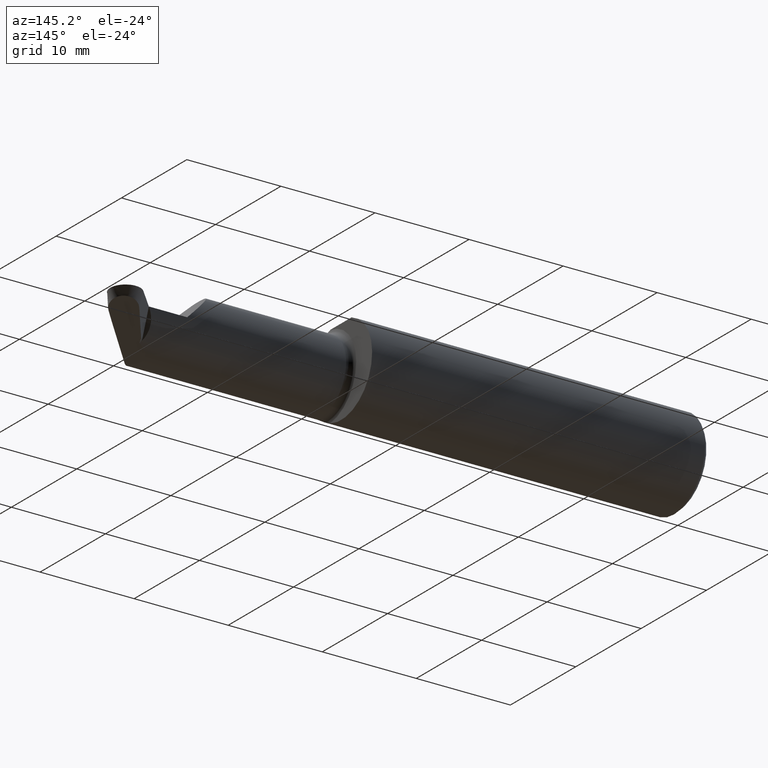
[diagram: clean part render]
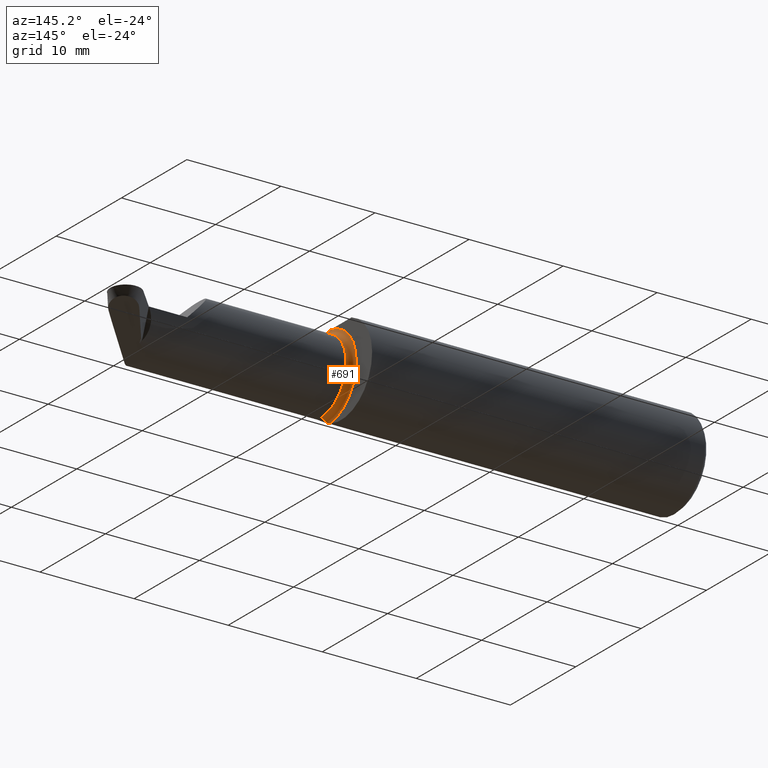
[diagram: same view with one face highlighted and labeled with its STEP entity id]
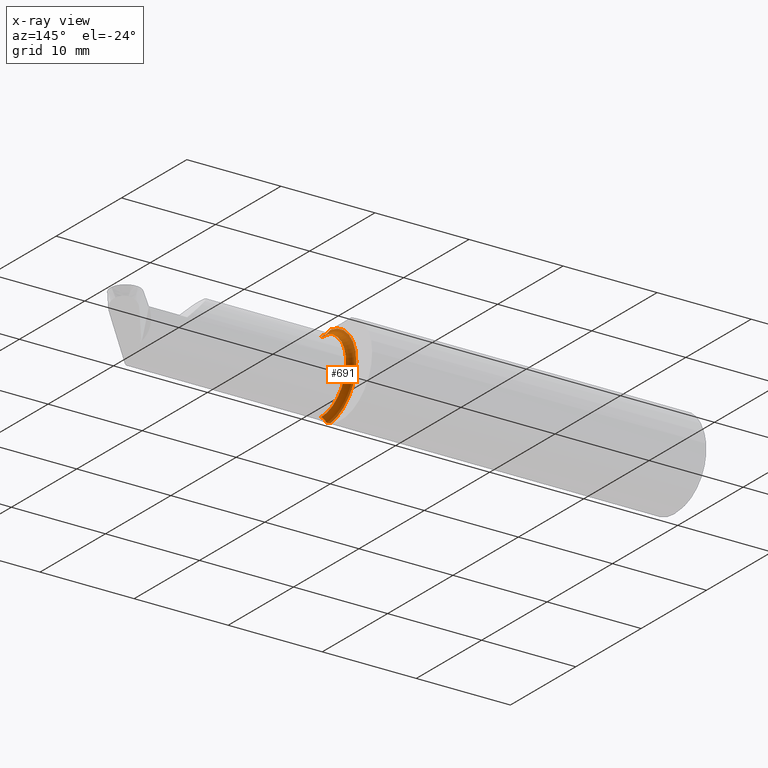
[diagram: x-ray of the same camera — body ghosted, the highlighted face saturated]
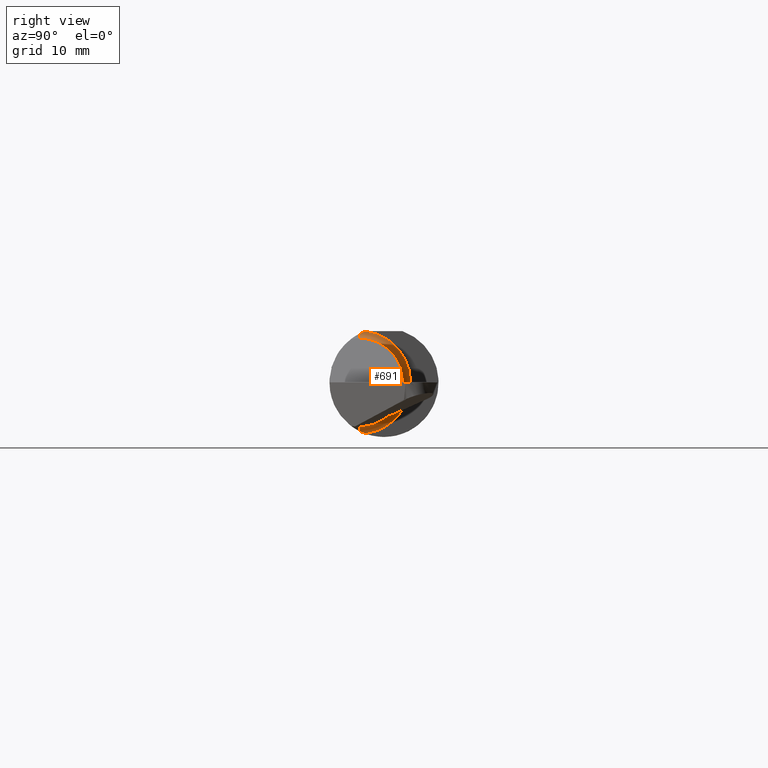
[diagram: same view with one face highlighted and labeled with its STEP entity id]
A machine part, auxiliary view. The second image highlights one B-rep face of the part: STEP entity #691.
The next image is the same camera in x-ray: the body ghosted, the highlighted face saturated — about 0% of this face is hidden behind the body in this view.
A second angle (right view) of the same face is appended — the face is thin or edge-on in the first view.
In plain terms, the highlighted toroidal blend (fillet) surface has major radius 4.4958 mm and minor (blend) radius 0.635 mm.
Its self-contained STEP definition (entity closure, byte-faithful):
#6 = CARTESIAN_POINT ( 'NONE',  ( 1.409400000000000652, -0.08534999999999998144, 0.000000000000000000 ) ) ;
#37 = EDGE_CURVE ( 'NONE', #842, #61, #468, .T. ) ;
#46 = VERTEX_POINT ( 'NONE', #677 ) ;
#61 = VERTEX_POINT ( 'NONE', #263 ) ;
#76 = B_SPLINE_CURVE_WITH_KNOTS ( 'NONE', 3,
 ( #552, #922, #929, #282 ),
 .UNSPECIFIED., .F., .F.,
 ( 4, 4 ),
 ( 0.001081723733566297046, 0.001661700673542924455 ),
 .UNSPECIFIED. ) ;
#110 = AXIS2_PLACEMENT_3D ( 'NONE', #845, #330, #412 ) ;
#116 = CARTESIAN_POINT ( 'NONE',  ( 1.411584626225753647, -0.08534999999999995368, -0.1667794951425384531 ) ) ;
#117 = ORIENTED_EDGE ( 'NONE', *, *, #370, .F. ) ;
#132 = FACE_OUTER_BOUND ( 'NONE', #251, .T. ) ;
#163 = AXIS2_PLACEMENT_3D ( 'NONE', #367, #750, #514 ) ;
#183 = ORIENTED_EDGE ( 'NONE', *, *, #927, .F. ) ;
#241 = CARTESIAN_POINT ( 'NONE',  ( 1.411584626225753647, -0.08534999999999996756, 0.1667794951425384531 ) ) ;
#251 = EDGE_LOOP ( 'NONE', ( #183, #899, #117, #854, #699, #752 ) ) ;
#257 = DIRECTION ( 'NONE',  ( -1.000000000000000000, -0.000000000000000000, -0.000000000000000000 ) ) ;
#263 = CARTESIAN_POINT ( 'NONE',  ( 1.434400000000000341, -0.08534999999999996756, -0.1520000000000007179 ) ) ;
#282 = CARTESIAN_POINT ( 'NONE',  ( 1.409400000000000652, -0.06476652021089474021, -0.1757990908957487997 ) ) ;
#284 = CIRCLE ( 'NONE', #163, 0.02499999999999993894 ) ;
#295 = DIRECTION ( 'NONE',  ( 0.000000000000000000, 0.000000000000000000, 1.000000000000000000 ) ) ;
#312 = CARTESIAN_POINT ( 'NONE',  ( 1.410075599206764618, -0.07876749217114902002, 0.1701481169429118478 ) ) ;
#330 = DIRECTION ( 'NONE',  ( -1.000000000000000000, -0.000000000000000000, -0.000000000000000000 ) ) ;
#349 = CARTESIAN_POINT ( 'NONE',  ( 1.409400000000000652, -0.06476652021089474021, -0.1757990908957487997 ) ) ;
#356 = CARTESIAN_POINT ( 'NONE',  ( 1.434400000000000341, -0.08534999999999998144, 0.1520000000000007179 ) ) ;
#363 = B_SPLINE_CURVE_WITH_KNOTS ( 'NONE', 3,
 ( #465, #616, #312, #241 ),
 .UNSPECIFIED., .F., .F.,
 ( 4, 4 ),
 ( 4.102419206622085705E-05, 0.0006141256517407885952 ),
 .UNSPECIFIED. ) ;
#367 = CARTESIAN_POINT ( 'NONE',  ( 1.434400000000000341, -0.08534999999999996756, -0.1770000000000007401 ) ) ;
#370 = EDGE_CURVE ( 'NONE', #46, #660, #924, .T. ) ;
#382 = DIRECTION ( 'NONE',  ( 0.000000000000000000, 0.000000000000000000, 1.000000000000000000 ) ) ;
#412 = DIRECTION ( 'NONE',  ( 0.000000000000000000, 0.000000000000000000, 1.000000000000000000 ) ) ;
#427 = EDGE_CURVE ( 'NONE', #46, #676, #363, .T. ) ;
#441 = DIRECTION ( 'NONE',  ( -1.000000000000000000, -0.000000000000000000, -0.000000000000000000 ) ) ;
#465 = CARTESIAN_POINT ( 'NONE',  ( 1.409400000000000652, -0.06476652021089474021, 0.1757990908957487997 ) ) ;
#468 = CIRCLE ( 'NONE', #545, 0.1520000000000007179 ) ;
#471 = VERTEX_POINT ( 'NONE', #116 ) ;
#513 = TOROIDAL_SURFACE ( 'NONE', #110, 0.1770000000000007401, 0.02499999999999993547 ) ;
#514 = DIRECTION ( 'NONE',  ( 0.000000000000000000, 0.000000000000000000, 1.000000000000000000 ) ) ;
#545 = AXIS2_PLACEMENT_3D ( 'NONE', #894, #257, #382 ) ;
#552 = CARTESIAN_POINT ( 'NONE',  ( 1.411584626225753647, -0.08534999999999995368, -0.1667794951425384531 ) ) ;
#590 = EDGE_CURVE ( 'NONE', #471, #660, #76, .T. ) ;
#616 = CARTESIAN_POINT ( 'NONE',  ( 1.409400000000000208, -0.07190536322760358867, 0.1731690544253198794 ) ) ;
#660 = VERTEX_POINT ( 'NONE', #349 ) ;
#668 = DIRECTION ( 'NONE',  ( 0.000000000000000000, -1.000000000000000000, 0.000000000000000000 ) ) ;
#676 = VERTEX_POINT ( 'NONE', #784 ) ;
#677 = CARTESIAN_POINT ( 'NONE',  ( 1.409400000000000652, -0.06476652021089474021, 0.1757990908957487997 ) ) ;
#690 = AXIS2_PLACEMENT_3D ( 'NONE', #811, #668, #886 ) ;
#691 = ADVANCED_FACE ( 'NONE', ( #132 ), #513, .F. ) ;
#699 = ORIENTED_EDGE ( 'NONE', *, *, #934, .T. ) ;
#750 = DIRECTION ( 'NONE',  ( -0.000000000000000000, 1.000000000000000000, 1.224646799147353207E-16 ) ) ;
#752 = ORIENTED_EDGE ( 'NONE', *, *, #37, .T. ) ;
#770 = CIRCLE ( 'NONE', #690, 0.02499999999999993894 ) ;
#784 = CARTESIAN_POINT ( 'NONE',  ( 1.411584626225753647, -0.08534999999999996756, 0.1667794951425384531 ) ) ;
#811 = CARTESIAN_POINT ( 'NONE',  ( 1.434400000000000341, -0.08534999999999998144, 0.1770000000000007401 ) ) ;
#840 = AXIS2_PLACEMENT_3D ( 'NONE', #6, #441, #295 ) ;
#842 = VERTEX_POINT ( 'NONE', #356 ) ;
#845 = CARTESIAN_POINT ( 'NONE',  ( 1.434400000000000341, -0.08534999999999998144, 0.000000000000000000 ) ) ;
#854 = ORIENTED_EDGE ( 'NONE', *, *, #427, .T. ) ;
#886 = DIRECTION ( 'NONE',  ( 0.000000000000000000, 0.000000000000000000, -1.000000000000000000 ) ) ;
#894 = CARTESIAN_POINT ( 'NONE',  ( 1.434400000000000341, -0.08534999999999998144, 0.000000000000000000 ) ) ;
#899 = ORIENTED_EDGE ( 'NONE', *, *, #590, .T. ) ;
#922 = CARTESIAN_POINT ( 'NONE',  ( 1.410080673000416507, -0.07878962450278774454, -0.1701367906434542998 ) ) ;
#924 = CIRCLE ( 'NONE', #840, 0.1770000000000007401 ) ;
#927 = EDGE_CURVE ( 'NONE', #471, #61, #284, .T. ) ;
#929 = CARTESIAN_POINT ( 'NONE',  ( 1.409400000000000652, -0.07189143372580403257, -0.1731741862229601581 ) ) ;
#934 = EDGE_CURVE ( 'NONE', #676, #842, #770, .T. ) ;